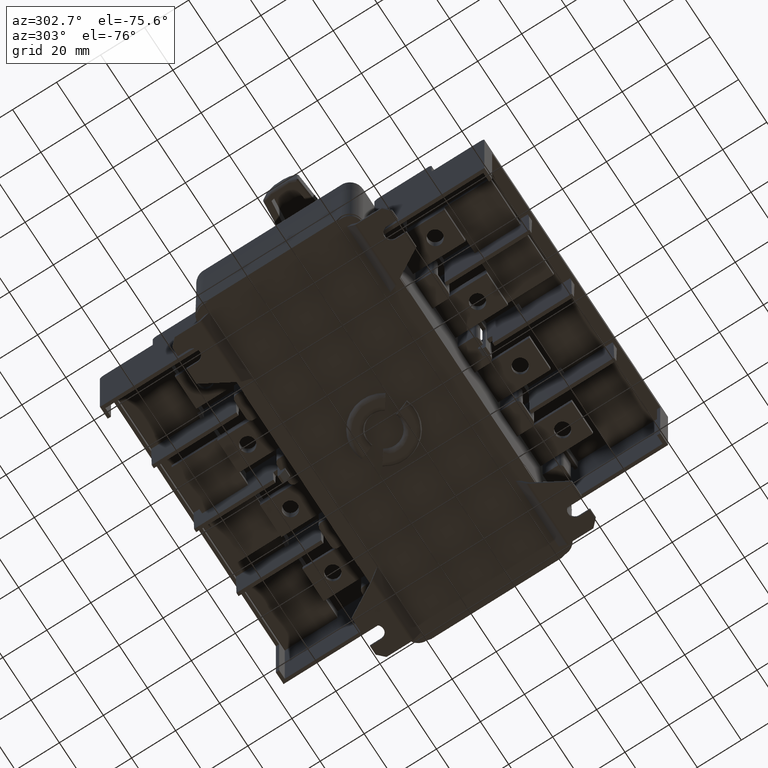
[diagram: clean part render]
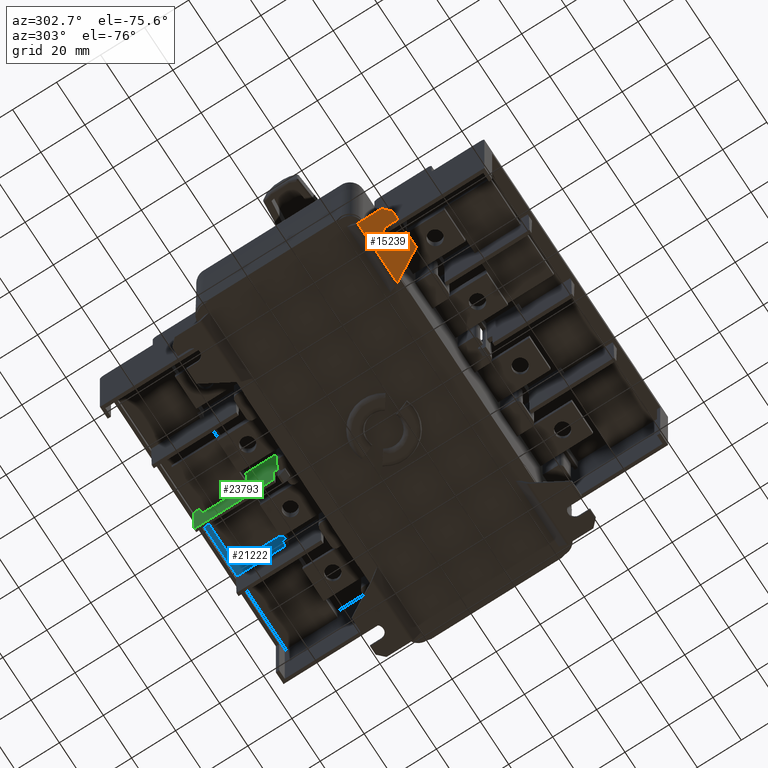
[diagram: same view with three faces highlighted in distinct colors, each labeled with its STEP entity id]
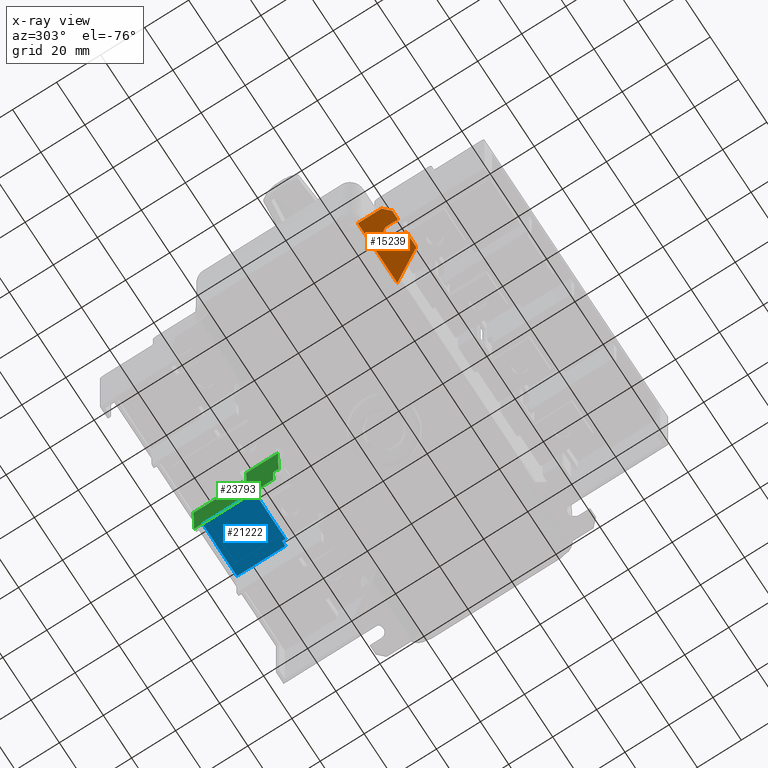
[diagram: x-ray of the same camera — body ghosted, the three highlighted faces saturated]
A machine part, auxiliary view with three faces highlighted in distinct colors.
The next image is the same camera in x-ray (body ghosted, the three faces saturated) — at least one of them is partly hidden behind the body in this view.
Their STEP definitions:

[orange] entity #15239 — the highlighted planar face has unit normal (0, 0, 1).
#233 = CARTESIAN_POINT ( 'NONE',  ( -144.3479055283356200, -5.200000000000000200, 4.500698134536290400 ) ) ;
#1090 = ORIENTED_EDGE ( 'NONE', *, *, #31353, .F. ) ;
#1615 = VECTOR ( 'NONE', #26343, 1000.000000000000000 ) ;
#1711 = CARTESIAN_POINT ( 'NONE',  ( -151.3479055283355000, -5.200000000000000200, 12.50069813453630000 ) ) ;
#3252 = B_SPLINE_CURVE_WITH_KNOTS ( 'NONE', 3,
 ( #23107, #29970, #23829, #36826, #27473, #20502, #4274, #17154, #30118, #13970 ),
 .UNSPECIFIED., .F., .F.,
 ( 4, 2, 2, 2, 4 ),
 ( 0.0000000000000000000, 0.2500000000000000000, 0.5000000000000000000, 0.7500000000000000000, 1.000000000000000000 ),
 .UNSPECIFIED. ) ;
#4274 = CARTESIAN_POINT ( 'NONE',  ( -141.7265463632728300, -5.200000000000009900, 5.989841193423591100 ) ) ;
#4363 = VERTEX_POINT ( 'NONE', #23259 ) ;
#5320 = LINE ( 'NONE', #23600, #26582 ) ;
#5614 = LINE ( 'NONE', #34078, #33128 ) ;
#5654 = DIRECTION ( 'NONE',  ( 1.000000000000000000, 0.0000000000000000000, 0.0000000000000000000 ) ) ;
#5856 = CARTESIAN_POINT ( 'NONE',  ( -154.3479055283355000, -5.200000000000000200, 12.50069813453630000 ) ) ;
#5948 = ORIENTED_EDGE ( 'NONE', *, *, #28761, .F. ) ;
#6488 = CARTESIAN_POINT ( 'NONE',  ( -154.3479055283355000, -5.200000000000000200, 9.500698134536289500 ) ) ;
#6635 = CARTESIAN_POINT ( 'NONE',  ( -146.9692646933983400, -5.200000000000009100, 5.989841193423591100 ) ) ;
#7664 = LINE ( 'NONE', #18328, #34183 ) ;
#7858 = CARTESIAN_POINT ( 'NONE',  ( -154.3479055283355000, -5.200000000000000200, 12.50069813453630000 ) ) ;
#8059 = DIRECTION ( 'NONE',  ( -1.000000000000000000, -0.0000000000000000000, -0.0000000000000000000 ) ) ;
#8734 = VECTOR ( 'NONE', #36180, 1000.000000000000100 ) ;
#9048 = DIRECTION ( 'NONE',  ( 1.084202172485504000E-019, 0.0000000000000000000, -1.000000000000000000 ) ) ;
#9160 = EDGE_CURVE ( 'NONE', #15044, #36469, #14193, .T. ) ;
#9210 = ORIENTED_EDGE ( 'NONE', *, *, #40722, .T. ) ;
#10459 = VECTOR ( 'NONE', #5654, 1000.000000000000000 ) ;
#11601 = ORIENTED_EDGE ( 'NONE', *, *, #20440, .F. ) ;
#11875 = VERTEX_POINT ( 'NONE', #26930 ) ;
#12291 = VERTEX_POINT ( 'NONE', #27468 ) ;
#12294 = FACE_OUTER_BOUND ( 'NONE', #30825, .T. ) ;
#12727 = CARTESIAN_POINT ( 'NONE',  ( -147.3479055283356200, -5.200000000000009900, 7.107999052837564100 ) ) ;
#13017 = CARTESIAN_POINT ( 'NONE',  ( -144.7406046100343500, -5.200000000000009900, 4.500698134536290400 ) ) ;
#13502 = VERTEX_POINT ( 'NONE', #19779 ) ;
#13970 = CARTESIAN_POINT ( 'NONE',  ( -141.3479055283356200, -5.200000000000000200, 7.500698134536289500 ) ) ;
#14193 = LINE ( 'NONE', #28670, #17843 ) ;
#15044 = VERTEX_POINT ( 'NONE', #22758 ) ;
#15239 = ADVANCED_FACE ( 'NONE', ( #12294 ), #38896, .F. ) ;
#15430 = DIRECTION ( 'NONE',  ( 1.000000000000000000, 0.0000000000000000000, 0.0000000000000000000 ) ) ;
#15554 = ORIENTED_EDGE ( 'NONE', *, *, #39101, .F. ) ;
#16500 = CARTESIAN_POINT ( 'NONE',  ( -145.1331491814135000, -5.200000000000009900, 4.578780104531344500 ) ) ;
#17042 = VECTOR ( 'NONE', #9048, 1000.000000000000000 ) ;
#17154 = CARTESIAN_POINT ( 'NONE',  ( -141.4259874983307000, -5.200000000000009900, 6.715454481458452000 ) ) ;
#17434 = EDGE_CURVE ( 'NONE', #40275, #11875, #3252, .T. ) ;
#17843 = VECTOR ( 'NONE', #26019, 1000.000000000000100 ) ;
#18328 = CARTESIAN_POINT ( 'NONE',  ( -154.3479055283355000, -5.200000000000000200, 12.50069813453630000 ) ) ;
#19269 = CARTESIAN_POINT ( 'NONE',  ( -147.3479055283355900, -5.200000000000000200, 7.500698134536289500 ) ) ;
#19374 = CARTESIAN_POINT ( 'NONE',  ( -141.3479055283356200, -5.200000000000000200, -1.899301865463709900 ) ) ;
#19709 = CARTESIAN_POINT ( 'NONE',  ( -146.1915456882603600, -5.200000000000009100, 5.101697607341749000 ) ) ;
#19779 = CARTESIAN_POINT ( 'NONE',  ( -141.3479055283356200, -5.200000000000000200, 12.50069813453630000 ) ) ;
#20440 = EDGE_CURVE ( 'NONE', #15044, #12291, #5614, .T. ) ;
#20502 = CARTESIAN_POINT ( 'NONE',  ( -141.9489050011410700, -5.200000000000009100, 5.657057974611543500 ) ) ;
#20580 = EDGE_CURVE ( 'NONE', #36879, #4363, #7664, .T. ) ;
#20679 = LINE ( 'NONE', #6488, #8734 ) ;
#20968 = ORIENTED_EDGE ( 'NONE', *, *, #17434, .F. ) ;
#21877 = LINE ( 'NONE', #19374, #1615 ) ;
#22077 = VERTEX_POINT ( 'NONE', #23619 ) ;
#22173 = CARTESIAN_POINT ( 'NONE',  ( -144.3479055283356200, -5.200000000000000200, 4.500698134536290400 ) ) ;
#22758 = CARTESIAN_POINT ( 'NONE',  ( -126.3859046625318000, -5.200000000000000200, -1.289891894944907900 ) ) ;
#22962 = ORIENTED_EDGE ( 'NONE', *, *, #20580, .F. ) ;
#23107 = CARTESIAN_POINT ( 'NONE',  ( -144.3479055283356200, -5.200000000000000200, 4.500698134536290400 ) ) ;
#23259 = CARTESIAN_POINT ( 'NONE',  ( -147.3479055283355900, -5.200000000000000200, 12.50069813453630000 ) ) ;
#23600 = CARTESIAN_POINT ( 'NONE',  ( -147.3479055283355900, -5.200000000000000200, -1.899301865463709900 ) ) ;
#23619 = CARTESIAN_POINT ( 'NONE',  ( -147.3479055283355900, -5.200000000000000200, 7.500698134536289500 ) ) ;
#23829 = CARTESIAN_POINT ( 'NONE',  ( -143.5626618752577900, -5.200000000000009100, 4.578780104531341000 ) ) ;
#25336 = CARTESIAN_POINT ( 'NONE',  ( -134.3479055283353900, -5.200000000000000200, 12.50069813453630000 ) ) ;
#26019 = DIRECTION ( 'NONE',  ( -0.4999999999999567000, 0.0000000000000000000, 0.8660254037844635800 ) ) ;
#26343 = DIRECTION ( 'NONE',  ( 0.0000000000000000000, 0.0000000000000000000, 1.000000000000000000 ) ) ;
#26388 = CARTESIAN_POINT ( 'NONE',  ( -145.8587624694483200, -5.200000000000009900, 4.879338969473519000 ) ) ;
#26582 = VECTOR ( 'NONE', #33524, 1000.000000000000000 ) ;
#26930 = CARTESIAN_POINT ( 'NONE',  ( -141.3479055283356200, -5.200000000000000200, 7.500698134536289500 ) ) ;
#26962 = CARTESIAN_POINT ( 'NONE',  ( -146.7469060555301600, -5.200000000000009900, 5.657057974611545200 ) ) ;
#27415 = ORIENTED_EDGE ( 'NONE', *, *, #38748, .F. ) ;
#27468 = CARTESIAN_POINT ( 'NONE',  ( -154.3479055283355000, -5.200000000000000200, -1.289891894944907900 ) ) ;
#27473 = CARTESIAN_POINT ( 'NONE',  ( -142.5042653684109000, -5.200000000000009900, 5.101697607341749000 ) ) ;
#28670 = CARTESIAN_POINT ( 'NONE',  ( -134.3479055283353900, -5.199999999999920200, 12.50069813453630000 ) ) ;
#28761 = EDGE_CURVE ( 'NONE', #11875, #13502, #21877, .T. ) ;
#28929 = CARTESIAN_POINT ( 'NONE',  ( -154.3479055283355000, -5.200000000000000200, 9.500698134536289500 ) ) ;
#29970 = CARTESIAN_POINT ( 'NONE',  ( -143.9552064466368500, -5.200000000000009900, 4.500698134536288600 ) ) ;
#30118 = CARTESIAN_POINT ( 'NONE',  ( -141.3479055283356200, -5.200000000000009900, 7.107999052837569400 ) ) ;
#30318 = CARTESIAN_POINT ( 'NONE',  ( -147.2698235583406200, -5.200000000000009100, 6.715454481458448500 ) ) ;
#30825 = EDGE_LOOP ( 'NONE', ( #27415, #5948, #20968, #36652, #15554, #22962, #1090, #9210, #11601, #31308 ) ) ;
#31012 = VERTEX_POINT ( 'NONE', #28929 ) ;
#31308 = ORIENTED_EDGE ( 'NONE', *, *, #9160, .T. ) ;
#31353 = EDGE_CURVE ( 'NONE', #31012, #36879, #20679, .T. ) ;
#32324 = DIRECTION ( 'NONE',  ( 0.0000000000000000000, 1.000000000000000000, 0.0000000000000000000 ) ) ;
#33128 = VECTOR ( 'NONE', #8059, 1000.000000000000000 ) ;
#33524 = DIRECTION ( 'NONE',  ( -0.0000000000000000000, -0.0000000000000000000, -1.000000000000000000 ) ) ;
#34078 = CARTESIAN_POINT ( 'NONE',  ( -154.3479055283355000, -5.200000000000000200, -1.289891894944906100 ) ) ;
#34183 = VECTOR ( 'NONE', #15430, 1000.000000000000000 ) ;
#34802 = LINE ( 'NONE', #5856, #17042 ) ;
#35543 = DIRECTION ( 'NONE',  ( 0.0000000000000000000, 0.0000000000000000000, 1.000000000000000000 ) ) ;
#36180 = DIRECTION ( 'NONE',  ( 0.7071067811865444600, 0.0000000000000000000, 0.7071067811865505700 ) ) ;
#36469 = VERTEX_POINT ( 'NONE', #25336 ) ;
#36652 = ORIENTED_EDGE ( 'NONE', *, *, #39048, .F. ) ;
#36826 = CARTESIAN_POINT ( 'NONE',  ( -142.8370485872229100, -5.200000000000009100, 4.879338969473511900 ) ) ;
#36879 = VERTEX_POINT ( 'NONE', #1711 ) ;
#38626 = LINE ( 'NONE', #7858, #10459 ) ;
#38748 = EDGE_CURVE ( 'NONE', #13502, #36469, #38626, .T. ) ;
#38896 = PLANE ( 'NONE',  #41883 ) ;
#39048 = EDGE_CURVE ( 'NONE', #22077, #40275, #41450, .T. ) ;
#39054 = CARTESIAN_POINT ( 'NONE',  ( -154.3479055283355000, -5.200000000000000200, -1.899301865463709900 ) ) ;
#39101 = EDGE_CURVE ( 'NONE', #4363, #22077, #5320, .T. ) ;
#40275 = VERTEX_POINT ( 'NONE', #22173 ) ;
#40722 = EDGE_CURVE ( 'NONE', #31012, #12291, #34802, .T. ) ;
#41450 = B_SPLINE_CURVE_WITH_KNOTS ( 'NONE', 3,
 ( #19269, #12727, #30318, #6635, #26962, #19709, #26388, #16500, #13017, #233 ),
 .UNSPECIFIED., .F., .F.,
 ( 4, 2, 2, 2, 4 ),
 ( 0.0000000000000000000, 0.2500000000000000000, 0.5000000000000000000, 0.7500000000000000000, 1.000000000000000000 ),
 .UNSPECIFIED. ) ;
#41883 = AXIS2_PLACEMENT_3D ( 'NONE', #39054, #32324, #35543 ) ;

[blue] entity #21222 — the highlighted planar face has unit normal (-0, 0, -1).
#243 = DIRECTION ( 'NONE',  ( 1.137978600240786000E-015, 1.058329660941509900E-016, -1.000000000000000000 ) ) ;
#311 = LINE ( 'NONE', #34637, #40960 ) ;
#348 = EDGE_CURVE ( 'NONE', #33932, #33303, #21144, .T. ) ;
#927 = EDGE_CURVE ( 'NONE', #5196, #17104, #311, .T. ) ;
#984 = VERTEX_POINT ( 'NONE', #22216 ) ;
#1595 = ORIENTED_EDGE ( 'NONE', *, *, #20381, .T. ) ;
#1777 = VECTOR ( 'NONE', #11212, 1000.000000000000000 ) ;
#2178 = DIRECTION ( 'NONE',  ( -4.163336342344332100E-017, -1.000000000000000000, -1.058329660941509900E-016 ) ) ;
#2258 = CARTESIAN_POINT ( 'NONE',  ( -50.46019402581310200, 48.80000000000000400, -122.8586277563954100 ) ) ;
#3179 = CARTESIAN_POINT ( 'NONE',  ( -52.80107844172300000, 48.80000000000000400, -99.35862775639539300 ) ) ;
#3282 = VERTEX_POINT ( 'NONE', #3890 ) ;
#3890 = CARTESIAN_POINT ( 'NONE',  ( -75.80107844172290800, 48.80000000000000400, -100.8586277563953900 ) ) ;
#4712 = DIRECTION ( 'NONE',  ( -1.000000000000000000, 4.163336342344344400E-017, -1.137978600240786000E-015 ) ) ;
#5149 = EDGE_CURVE ( 'NONE', #3282, #984, #10293, .T. ) ;
#5196 = VERTEX_POINT ( 'NONE', #2258 ) ;
#6838 = LINE ( 'NONE', #16785, #40693 ) ;
#7382 = EDGE_LOOP ( 'NONE', ( #40156, #43140, #8138, #41071, #1595, #23469, #18045, #10216 ) ) ;
#7513 = CARTESIAN_POINT ( 'NONE',  ( -52.80107844172300000, 48.80000000000000400, -100.8586277563953900 ) ) ;
#7641 = CARTESIAN_POINT ( 'NONE',  ( -14.35000000000000000, 48.80000000000000400, -99.35862775639529300 ) ) ;
#8138 = ORIENTED_EDGE ( 'NONE', *, *, #18142, .F. ) ;
#8736 = LINE ( 'NONE', #14564, #34231 ) ;
#10216 = ORIENTED_EDGE ( 'NONE', *, *, #25297, .T. ) ;
#10293 = LINE ( 'NONE', #24484, #35310 ) ;
#10531 = DIRECTION ( 'NONE',  ( -1.000000000000000000, 4.163336342344344400E-017, -1.137978600240786000E-015 ) ) ;
#11041 = CARTESIAN_POINT ( 'NONE',  ( -75.80107844172290800, 48.80000000000000400, -100.8586277563953900 ) ) ;
#11212 = DIRECTION ( 'NONE',  ( -1.000000000000000000, 4.163336342344344400E-017, -1.137978600240786000E-015 ) ) ;
#14564 = CARTESIAN_POINT ( 'NONE',  ( -78.13980597418699900, 48.80000000000000400, -75.74434816310420600 ) ) ;
#15651 = DIRECTION ( 'NONE',  ( -1.137978600240786000E-015, -1.058329660941509900E-016, 1.000000000000000000 ) ) ;
#16584 = AXIS2_PLACEMENT_3D ( 'NONE', #38686, #2178, #42022 ) ;
#16785 = CARTESIAN_POINT ( 'NONE',  ( -50.46019402581310200, 48.80000000000000400, -75.74434816310420600 ) ) ;
#16966 = VECTOR ( 'NONE', #10531, 1000.000000000000000 ) ;
#17104 = VERTEX_POINT ( 'NONE', #39227 ) ;
#17371 = DIRECTION ( 'NONE',  ( -1.137978600240786000E-015, -1.058329660941509900E-016, 1.000000000000000000 ) ) ;
#17994 = LINE ( 'NONE', #35612, #27901 ) ;
#18045 = ORIENTED_EDGE ( 'NONE', *, *, #28332, .F. ) ;
#18142 = EDGE_CURVE ( 'NONE', #3282, #33303, #25495, .T. ) ;
#18375 = LINE ( 'NONE', #27610, #1777 ) ;
#19254 = VERTEX_POINT ( 'NONE', #42755 ) ;
#20381 = EDGE_CURVE ( 'NONE', #984, #17104, #8736, .T. ) ;
#21144 = LINE ( 'NONE', #7641, #16966 ) ;
#21212 = EDGE_CURVE ( 'NONE', #31660, #33932, #17994, .T. ) ;
#21222 = ADVANCED_FACE ( 'NONE', ( #25796 ), #28603, .T. ) ;
#22216 = CARTESIAN_POINT ( 'NONE',  ( -78.13980597418699900, 48.80000000000000400, -100.8586277563953900 ) ) ;
#23469 = ORIENTED_EDGE ( 'NONE', *, *, #927, .F. ) ;
#24484 = CARTESIAN_POINT ( 'NONE',  ( -75.80107844172290800, 48.80000000000000400, -100.8586277563953900 ) ) ;
#25297 = EDGE_CURVE ( 'NONE', #19254, #31660, #18375, .T. ) ;
#25495 = LINE ( 'NONE', #11041, #30193 ) ;
#25796 = FACE_OUTER_BOUND ( 'NONE', #7382, .T. ) ;
#26321 = CARTESIAN_POINT ( 'NONE',  ( -75.80107844172290800, 48.80000000000000400, -99.35862775639539300 ) ) ;
#27610 = CARTESIAN_POINT ( 'NONE',  ( -45.80107844172300000, 48.80000000000000400, -100.8586277563953900 ) ) ;
#27656 = DIRECTION ( 'NONE',  ( 1.137978600240786000E-015, 1.058329660941509900E-016, -1.000000000000000000 ) ) ;
#27901 = VECTOR ( 'NONE', #15651, 1000.000000000000000 ) ;
#28332 = EDGE_CURVE ( 'NONE', #19254, #5196, #6838, .T. ) ;
#28603 = PLANE ( 'NONE',  #16584 ) ;
#30193 = VECTOR ( 'NONE', #17371, 1000.000000000000000 ) ;
#31660 = VERTEX_POINT ( 'NONE', #7513 ) ;
#33303 = VERTEX_POINT ( 'NONE', #26321 ) ;
#33932 = VERTEX_POINT ( 'NONE', #3179 ) ;
#34231 = VECTOR ( 'NONE', #27656, 1000.000000000000000 ) ;
#34637 = CARTESIAN_POINT ( 'NONE',  ( -14.35000000000000000, 48.80000000000000400, -122.8586277563954100 ) ) ;
#35310 = VECTOR ( 'NONE', #38063, 1000.000000000000000 ) ;
#35612 = CARTESIAN_POINT ( 'NONE',  ( -52.80107844172300000, 48.80000000000000400, -100.8586277563953900 ) ) ;
#38063 = DIRECTION ( 'NONE',  ( -1.000000000000000000, 4.163336342344344400E-017, -1.137978600240786000E-015 ) ) ;
#38686 = CARTESIAN_POINT ( 'NONE',  ( -14.35000000000000000, 48.80000000000000400, -122.8586277563954100 ) ) ;
#39227 = CARTESIAN_POINT ( 'NONE',  ( -78.13980597418699900, 48.80000000000000400, -122.8586277563954100 ) ) ;
#40156 = ORIENTED_EDGE ( 'NONE', *, *, #21212, .T. ) ;
#40693 = VECTOR ( 'NONE', #243, 1000.000000000000000 ) ;
#40960 = VECTOR ( 'NONE', #4712, 1000.000000000000000 ) ;
#41071 = ORIENTED_EDGE ( 'NONE', *, *, #5149, .T. ) ;
#42022 = DIRECTION ( 'NONE',  ( -1.000000000000000000, 4.163336342344344400E-017, -1.137978600240786000E-015 ) ) ;
#42755 = CARTESIAN_POINT ( 'NONE',  ( -50.46019402581310200, 48.80000000000000400, -100.8586277563953900 ) ) ;
#43140 = ORIENTED_EDGE ( 'NONE', *, *, #348, .T. ) ;

[green] entity #23793 — the highlighted planar face has unit normal (0.9998, -0, 0.0175).
#45 = CARTESIAN_POINT ( 'NONE',  ( -80.46019402581310900, 48.80000000000000400, -123.1515209752088700 ) ) ;
#46 = EDGE_CURVE ( 'NONE', #32358, #38388, #17002, .T. ) ;
#342 = CARTESIAN_POINT ( 'NONE',  ( -80.45657896350040500, 48.59289321881345800, -123.3586277563954100 ) ) ;
#921 = DIRECTION ( 'NONE',  ( 0.01745240643728330300, -0.9998476951563911600, -8.595638217246840900E-017 ) ) ;
#1067 = CARTESIAN_POINT ( 'NONE',  ( -80.63112961278263000, 58.59289321881345100, -99.35862775639539300 ) ) ;
#2129 = VERTEX_POINT ( 'NONE', #14362 ) ;
#2392 = CARTESIAN_POINT ( 'NONE',  ( -80.25946077913864900, 37.29999999999999000, -87.35862775639539300 ) ) ;
#3815 = CARTESIAN_POINT ( 'NONE',  ( -80.04999999999999700, 25.30000000000000100, -75.74434816310420600 ) ) ;
#3888 = CARTESIAN_POINT ( 'NONE',  ( -80.21582311681810000, 34.79999999999999700, -87.35862775639539300 ) ) ;
#4142 = CARTESIAN_POINT ( 'NONE',  ( -80.63474467509530500, 58.79999999999999700, -99.35862775639539300 ) ) ;
#4582 = CARTESIAN_POINT ( 'NONE',  ( -80.63474467509532000, 58.80000000000000400, -99.15152097520886800 ) ) ;
#4903 = VERTEX_POINT ( 'NONE', #6006 ) ;
#5068 =( BOUNDED_CURVE ( )  B_SPLINE_CURVE ( 3, ( #22285, #2392, #28973, #9083 ),
 .UNSPECIFIED., .F., .T. ) 
 B_SPLINE_CURVE_WITH_KNOTS ( ( 4, 4 ),
 ( 1.570796326794896600, 4.712388980384689700 ),
 .UNSPECIFIED. ) 
 CURVE ( )  GEOMETRIC_REPRESENTATION_ITEM ( )  RATIONAL_B_SPLINE_CURVE ( ( 1.000000000000000000, 0.3333333333333333700, 0.3333333333333333700, 1.000000000000000000 ) ) 
 REPRESENTATION_ITEM ( '' )  );
#6006 = CARTESIAN_POINT ( 'NONE',  ( -80.41894957744820300, 46.43710713569120000, -99.35862775639539300 ) ) ;
#6055 = CARTESIAN_POINT ( 'NONE',  ( -80.63474467509530500, 58.79999999999999700, -84.85862775639539300 ) ) ;
#6508 = DIRECTION ( 'NONE',  ( -0.01745240643728370200, 0.9998476951563911600, 8.595638217246791600E-017 ) ) ;
#6696 = DIRECTION ( 'NONE',  ( 1.137978600240786000E-015, 1.058329660941509900E-016, -1.000000000000000000 ) ) ;
#7109 = CARTESIAN_POINT ( 'NONE',  ( -80.04999999999999700, 25.30000000000000100, -87.35862775639539300 ) ) ;
#7626 = CARTESIAN_POINT ( 'NONE',  ( -80.63474467509530500, 58.79999999999999700, -98.85862775639540700 ) ) ;
#9083 = CARTESIAN_POINT ( 'NONE',  ( -80.21582311681810000, 34.79999999999999700, -84.85862775639539300 ) ) ;
#9266 = EDGE_CURVE ( 'NONE', #28729, #24832, #30298, .T. ) ;
#9307 =( BOUNDED_CURVE ( )  B_SPLINE_CURVE ( 3, ( #20952, #1067, #4582, #10824 ),
 .UNSPECIFIED., .F., .F. ) 
 B_SPLINE_CURVE_WITH_KNOTS ( ( 4, 4 ),
 ( 4.712388980384689700, 6.283185307179586200 ),
 .UNSPECIFIED. ) 
 CURVE ( )  GEOMETRIC_REPRESENTATION_ITEM ( )  RATIONAL_B_SPLINE_CURVE ( ( 1.000000000000000000, 0.8047378541243649400, 0.8047378541243649400, 1.000000000000000000 ) ) 
 REPRESENTATION_ITEM ( '' )  );
#10615 = FACE_OUTER_BOUND ( 'NONE', #17514, .T. ) ;
#10824 = CARTESIAN_POINT ( 'NONE',  ( -80.63474467509530500, 58.79999999999999700, -98.85862775639540700 ) ) ;
#11341 = ORIENTED_EDGE ( 'NONE', *, *, #37318, .T. ) ;
#12389 = CARTESIAN_POINT ( 'NONE',  ( -80.62601714263121300, 58.29999999999999700, -99.35862775639539300 ) ) ;
#12870 = EDGE_CURVE ( 'NONE', #42889, #32989, #14971, .T. ) ;
#13445 = CARTESIAN_POINT ( 'NONE',  ( -80.46019402581301000, 48.80000000000000400, -123.3586277563954100 ) ) ;
#13607 = LINE ( 'NONE', #4142, #30253 ) ;
#13944 = ORIENTED_EDGE ( 'NONE', *, *, #24390, .F. ) ;
#14362 = CARTESIAN_POINT ( 'NONE',  ( -80.04999999999999700, 25.30000000000000100, -123.3586277563954100 ) ) ;
#14971 = LINE ( 'NONE', #39697, #20147 ) ;
#15567 = CARTESIAN_POINT ( 'NONE',  ( -80.46019402581301000, 48.80000000000000400, -122.8586277563954100 ) ) ;
#15771 = DIRECTION ( 'NONE',  ( 0.01745240643728330300, -0.9998476951563911600, -8.292887225656390200E-017 ) ) ;
#16451 = DIRECTION ( 'NONE',  ( 0.9998476951563912700, 0.01745240643728370600, 1.139652320526784200E-015 ) ) ;
#17002 = LINE ( 'NONE', #37205, #31614 ) ;
#17514 = EDGE_LOOP ( 'NONE', ( #38869, #30148, #39033, #23813, #35955, #28870, #13944, #43052, #36265, #39325, #39844, #27292, #11341 ) ) ;
#17687 = LINE ( 'NONE', #19762, #28111 ) ;
#19239 = VERTEX_POINT ( 'NONE', #38428 ) ;
#19762 = CARTESIAN_POINT ( 'NONE',  ( -80.41894957744820300, 46.43710713569120000, -75.74434816310420600 ) ) ;
#19946 = DIRECTION ( 'NONE',  ( 0.01745240643728370200, -0.9998476951563911600, -8.595638217246791600E-017 ) ) ;
#20147 = VECTOR ( 'NONE', #6508, 1000.000000000000100 ) ;
#20899 = CARTESIAN_POINT ( 'NONE',  ( -80.21582311681810000, 34.79999999999999700, -84.85862775639539300 ) ) ;
#20952 = CARTESIAN_POINT ( 'NONE',  ( -80.62601714263121300, 58.29999999999999700, -99.35862775639539300 ) ) ;
#22285 = CARTESIAN_POINT ( 'NONE',  ( -80.21582311681810000, 34.79999999999999700, -87.35862775639539300 ) ) ;
#23273 = CARTESIAN_POINT ( 'NONE',  ( -80.46019402581301000, 48.80000000000000400, -122.8586277563954100 ) ) ;
#23553 = CARTESIAN_POINT ( 'NONE',  ( -80.45146649334900200, 48.30000000000000400, -123.3586277563954100 ) ) ;
#23793 = ADVANCED_FACE ( 'NONE', ( #10615 ), #29838, .F. ) ;
#23813 = ORIENTED_EDGE ( 'NONE', *, *, #26817, .F. ) ;
#23938 = LINE ( 'NONE', #13445, #38072 ) ;
#24390 = EDGE_CURVE ( 'NONE', #42889, #2129, #39833, .T. ) ;
#24832 = VERTEX_POINT ( 'NONE', #15567 ) ;
#25971 = EDGE_CURVE ( 'NONE', #32358, #28137, #30858, .T. ) ;
#26445 = CARTESIAN_POINT ( 'NONE',  ( -80.63474467509530500, 58.79999999999999700, -84.85862775639539300 ) ) ;
#26626 = CARTESIAN_POINT ( 'NONE',  ( -80.46019402581309500, 48.80000000000000400, -75.74434816310420600 ) ) ;
#26780 = CARTESIAN_POINT ( 'NONE',  ( -80.46019402581301000, 48.80000000000000400, -123.3586277563954100 ) ) ;
#26817 = EDGE_CURVE ( 'NONE', #19239, #24832, #42678, .T. ) ;
#26876 = EDGE_CURVE ( 'NONE', #31859, #38388, #9307, .T. ) ;
#27116 = VERTEX_POINT ( 'NONE', #28649 ) ;
#27210 = EDGE_CURVE ( 'NONE', #19239, #27932, #23938, .T. ) ;
#27292 = ORIENTED_EDGE ( 'NONE', *, *, #26876, .F. ) ;
#27932 = VERTEX_POINT ( 'NONE', #31729 ) ;
#28111 = VECTOR ( 'NONE', #6696, 1000.000000000000000 ) ;
#28137 = VERTEX_POINT ( 'NONE', #20899 ) ;
#28647 = AXIS2_PLACEMENT_3D ( 'NONE', #26626, #16451, #29983 ) ;
#28649 = CARTESIAN_POINT ( 'NONE',  ( -80.41894957744820300, 46.43710713569120000, -100.8586277563953900 ) ) ;
#28729 = VERTEX_POINT ( 'NONE', #35288 ) ;
#28749 = VECTOR ( 'NONE', #33910, 1000.000000000000000 ) ;
#28870 = ORIENTED_EDGE ( 'NONE', *, *, #37177, .T. ) ;
#28973 = CARTESIAN_POINT ( 'NONE',  ( -80.25946077913864900, 37.29999999999999000, -84.85862775639539300 ) ) ;
#29029 = EDGE_CURVE ( 'NONE', #4903, #27116, #17687, .T. ) ;
#29539 = CARTESIAN_POINT ( 'NONE',  ( -80.46019402581309500, 48.80000000000000400, -100.8586277563953900 ) ) ;
#29838 = PLANE ( 'NONE',  #28647 ) ;
#29983 = DIRECTION ( 'NONE',  ( 0.01745240643728370600, -0.9998476951563912700, -8.595638217246792900E-017 ) ) ;
#30148 = ORIENTED_EDGE ( 'NONE', *, *, #31929, .T. ) ;
#30253 = VECTOR ( 'NONE', #921, 1000.000000000000100 ) ;
#30298 = LINE ( 'NONE', #40634, #28749 ) ;
#30548 = DIRECTION ( 'NONE',  ( 1.137978600240786000E-015, 1.058329660941509900E-016, -1.000000000000000000 ) ) ;
#30810 = LINE ( 'NONE', #26780, #40224 ) ;
#30858 = LINE ( 'NONE', #6055, #31904 ) ;
#31614 = VECTOR ( 'NONE', #34141, 1000.000000000000000 ) ;
#31729 = CARTESIAN_POINT ( 'NONE',  ( -80.39910129856440300, 45.29999999999999700, -123.3586277563954100 ) ) ;
#31859 = VERTEX_POINT ( 'NONE', #12389 ) ;
#31904 = VECTOR ( 'NONE', #15771, 1000.000000000000100 ) ;
#31929 = EDGE_CURVE ( 'NONE', #27116, #28729, #34182, .T. ) ;
#32358 = VERTEX_POINT ( 'NONE', #26445 ) ;
#32989 = VERTEX_POINT ( 'NONE', #3888 ) ;
#33331 = DIRECTION ( 'NONE',  ( -0.01745240643728370200, 0.9998476951563911600, 8.595638217246791600E-017 ) ) ;
#33910 = DIRECTION ( 'NONE',  ( 1.137978600240786000E-015, 1.058329660941509900E-016, -1.000000000000000000 ) ) ;
#34141 = DIRECTION ( 'NONE',  ( 1.137978600240786000E-015, 1.058329660941509900E-016, -1.000000000000000000 ) ) ;
#34182 = LINE ( 'NONE', #29539, #36807 ) ;
#35288 = CARTESIAN_POINT ( 'NONE',  ( -80.46019402581309500, 48.80000000000000400, -100.8586277563953900 ) ) ;
#35955 = ORIENTED_EDGE ( 'NONE', *, *, #27210, .T. ) ;
#36265 = ORIENTED_EDGE ( 'NONE', *, *, #37131, .T. ) ;
#36749 = DIRECTION ( 'NONE',  ( 0.01745240643728370200, -0.9998476951563911600, -8.595638217246791600E-017 ) ) ;
#36807 = VECTOR ( 'NONE', #33331, 1000.000000000000100 ) ;
#37131 = EDGE_CURVE ( 'NONE', #32989, #28137, #5068, .T. ) ;
#37177 = EDGE_CURVE ( 'NONE', #27932, #2129, #30810, .T. ) ;
#37205 = CARTESIAN_POINT ( 'NONE',  ( -80.63474467509530500, 58.79999999999999700, -51.25243527062310300 ) ) ;
#37235 = VECTOR ( 'NONE', #30548, 1000.000000000000000 ) ;
#37318 = EDGE_CURVE ( 'NONE', #31859, #4903, #13607, .T. ) ;
#38072 = VECTOR ( 'NONE', #36749, 1000.000000000000100 ) ;
#38388 = VERTEX_POINT ( 'NONE', #7626 ) ;
#38428 = CARTESIAN_POINT ( 'NONE',  ( -80.45146649334900200, 48.30000000000000400, -123.3586277563954100 ) ) ;
#38869 = ORIENTED_EDGE ( 'NONE', *, *, #29029, .T. ) ;
#39033 = ORIENTED_EDGE ( 'NONE', *, *, #9266, .T. ) ;
#39325 = ORIENTED_EDGE ( 'NONE', *, *, #25971, .F. ) ;
#39697 = CARTESIAN_POINT ( 'NONE',  ( -80.46019402581309500, 48.80000000000000400, -87.35862775639539300 ) ) ;
#39833 = LINE ( 'NONE', #3815, #37235 ) ;
#39844 = ORIENTED_EDGE ( 'NONE', *, *, #46, .T. ) ;
#40224 = VECTOR ( 'NONE', #19946, 1000.000000000000100 ) ;
#40634 = CARTESIAN_POINT ( 'NONE',  ( -80.46019402581309500, 48.80000000000000400, -75.74434816310420600 ) ) ;
#42678 =( BOUNDED_CURVE ( )  B_SPLINE_CURVE ( 3, ( #23553, #342, #45, #23273 ),
 .UNSPECIFIED., .F., .T. ) 
 B_SPLINE_CURVE_WITH_KNOTS ( ( 4, 4 ),
 ( 4.712388980384689700, 6.283185307179586200 ),
 .UNSPECIFIED. ) 
 CURVE ( )  GEOMETRIC_REPRESENTATION_ITEM ( )  RATIONAL_B_SPLINE_CURVE ( ( 1.000000000000000000, 0.8047378541243649400, 0.8047378541243649400, 1.000000000000000000 ) ) 
 REPRESENTATION_ITEM ( '' )  );
#42889 = VERTEX_POINT ( 'NONE', #7109 ) ;
#43052 = ORIENTED_EDGE ( 'NONE', *, *, #12870, .T. ) ;